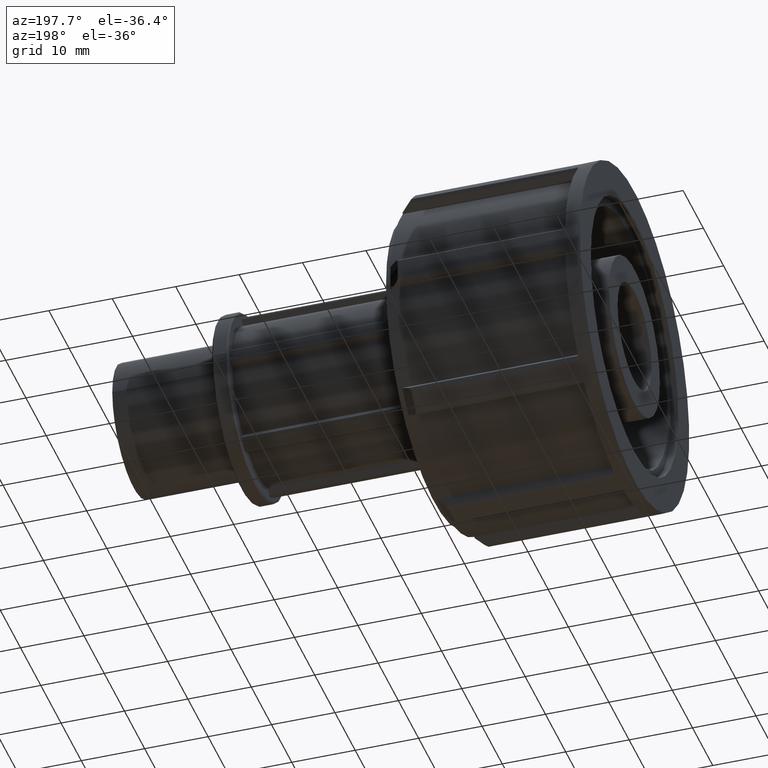
[diagram: clean part render]
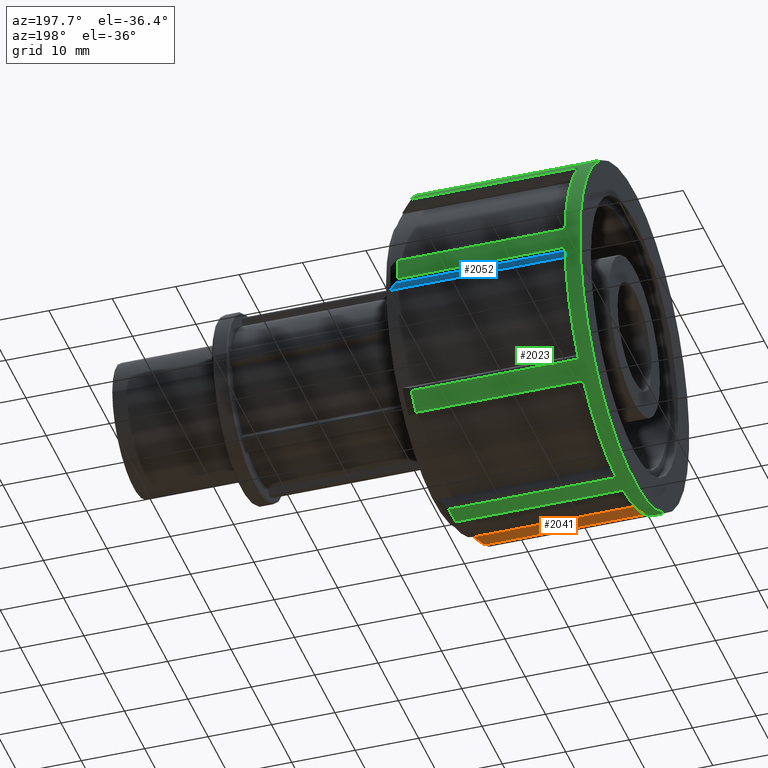
[diagram: same view with three faces highlighted in distinct colors, each labeled with its STEP entity id]
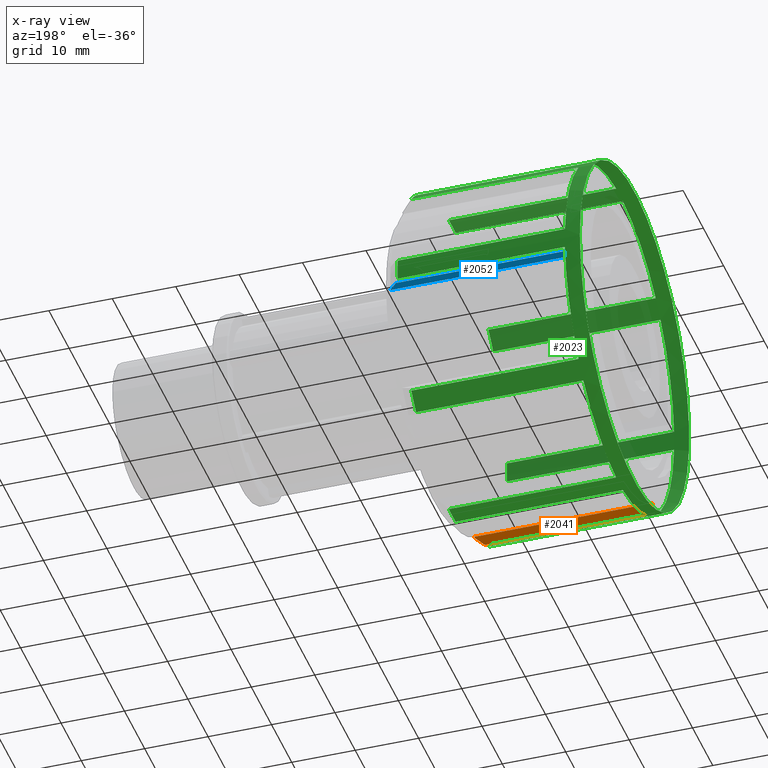
[diagram: x-ray of the same camera — body ghosted, the three highlighted faces saturated]
A machine part, auxiliary view with three faces highlighted in distinct colors.
The next image is the same camera in x-ray (body ghosted, the three faces saturated) — at least one of them is partly hidden behind the body in this view.
Their STEP definitions:

[orange] entity #2041 — the highlighted planar face has unit normal (0, 0.7071, -0.7071).
#33=(
BOUNDED_CURVE()
B_SPLINE_CURVE(2,(#3322,#3323,#3324),.UNSPECIFIED.,.F.,.F.)
B_SPLINE_CURVE_WITH_KNOTS((3,3),(3.71556836245612,3.9693944664499),
 .UNSPECIFIED.)
CURVE()
GEOMETRIC_REPRESENTATION_ITEM()
RATIONAL_B_SPLINE_CURVE((1.00844347344004,1.00451014131366,1.))
REPRESENTATION_ITEM('')
);
#258=FACE_OUTER_BOUND('',#380,.T.);
#380=EDGE_LOOP('',(#1660,#1661,#1662,#1663,#1664));
#580=LINE('',#3333,#760);
#581=LINE('',#3336,#761);
#582=LINE('',#3338,#762);
#583=LINE('',#3339,#763);
#760=VECTOR('',#2657,26.7864159718823);
#761=VECTOR('',#2660,1.47705058391555);
#762=VECTOR('',#2661,28.045);
#763=VECTOR('',#2662,0.214341363051373);
#954=VERTEX_POINT('',#3317);
#955=VERTEX_POINT('',#3321);
#957=VERTEX_POINT('',#3331);
#958=VERTEX_POINT('',#3335);
#959=VERTEX_POINT('',#3337);
#1213=EDGE_CURVE('',#954,#955,#33,.T.);
#1217=EDGE_CURVE('',#957,#954,#580,.T.);
#1218=EDGE_CURVE('',#958,#957,#581,.T.);
#1219=EDGE_CURVE('',#959,#958,#582,.T.);
#1220=EDGE_CURVE('',#955,#959,#583,.T.);
#1660=ORIENTED_EDGE('',*,*,#1217,.F.);
#1661=ORIENTED_EDGE('',*,*,#1218,.F.);
#1662=ORIENTED_EDGE('',*,*,#1219,.F.);
#1663=ORIENTED_EDGE('',*,*,#1220,.F.);
#1664=ORIENTED_EDGE('',*,*,#1213,.F.);
#1946=PLANE('',#2210);
#2041=ADVANCED_FACE('',(#258),#1946,.T.);
#2210=AXIS2_PLACEMENT_3D('',#3334,#2658,#2659);
#2657=DIRECTION('',(1.,0.,0.));
#2658=DIRECTION('center_axis',(0.,0.707106781186547,-0.707106781186548));
#2659=DIRECTION('ref_axis',(0.,-0.707106781186548,-0.707106781186547));
#2660=DIRECTION('',(0.,-0.707106781186548,-0.707106781186547));
#2661=DIRECTION('',(-1.,0.,0.));
#2662=DIRECTION('',(0.,0.707106781186548,0.707106781186547));
#3317=CARTESIAN_POINT('',(29.1564159718823,-17.2562056993749,-20.2196902193277));
#3321=CARTESIAN_POINT('',(30.415,-16.363335446635,-19.3268199665878));
#3322=CARTESIAN_POINT('Ctrl Pts',(29.1564159718823,-17.2562056993749,-20.2196902193277));
#3323=CARTESIAN_POINT('Ctrl Pts',(29.8010669156503,-16.7989456499202,-19.762430169873));
#3324=CARTESIAN_POINT('Ctrl Pts',(30.415,-16.363335446635,-19.3268199665878));
#3331=CARTESIAN_POINT('',(2.37,-17.2562056993749,-20.2196902193277));
#3333=CARTESIAN_POINT('',(1.185,-17.2562056993749,-20.2196902193277));
#3334=CARTESIAN_POINT('Origin',(30.415,-15.253646587463,-18.2171311074158));
#3335=CARTESIAN_POINT('',(2.37,-16.2117732153326,-19.1752577352854));
#3336=CARTESIAN_POINT('',(2.37,-0.6084521637433,-3.57193668369612));
#3337=CARTESIAN_POINT('',(30.415,-16.2117732153326,-19.1752577352854));
#3338=CARTESIAN_POINT('',(16.3925,-16.2117732153326,-19.1752577352854));
#3339=CARTESIAN_POINT('',(30.415,-17.5525541513701,-20.516038671323));

[blue] entity #2052 — the highlighted planar face has unit normal (0, -0, -1).
#22=(
BOUNDED_CURVE()
B_SPLINE_CURVE(2,(#3231,#3232,#3233),.UNSPECIFIED.,.F.,.F.)
B_SPLINE_CURVE_WITH_KNOTS((3,3),(0.,0.253826104014613),.UNSPECIFIED.)
CURVE()
GEOMETRIC_REPRESENTATION_ITEM()
RATIONAL_B_SPLINE_CURVE((1.,1.00451014132042,1.00844347345264))
REPRESENTATION_ITEM('')
);
#269=FACE_OUTER_BOUND('',#391,.T.);
#391=EDGE_LOOP('',(#1713,#1714,#1715,#1716,#1717));
#556=LINE('',#3218,#736);
#604=LINE('',#3418,#784);
#605=LINE('',#3420,#785);
#606=LINE('',#3421,#786);
#736=VECTOR('',#2597,26.7864159718823);
#784=VECTOR('',#2709,0.21434136305138);
#785=VECTOR('',#2710,28.045);
#786=VECTOR('',#2711,1.47705058391555);
#928=VERTEX_POINT('',#3213);
#929=VERTEX_POINT('',#3217);
#932=VERTEX_POINT('',#3229);
#980=VERTEX_POINT('',#3417);
#981=VERTEX_POINT('',#3419);
#1174=EDGE_CURVE('',#928,#929,#556,.T.);
#1179=EDGE_CURVE('',#932,#928,#22,.T.);
#1251=EDGE_CURVE('',#980,#932,#604,.T.);
#1252=EDGE_CURVE('',#981,#980,#605,.T.);
#1253=EDGE_CURVE('',#929,#981,#606,.T.);
#1713=ORIENTED_EDGE('',*,*,#1174,.F.);
#1714=ORIENTED_EDGE('',*,*,#1179,.F.);
#1715=ORIENTED_EDGE('',*,*,#1251,.F.);
#1716=ORIENTED_EDGE('',*,*,#1252,.F.);
#1717=ORIENTED_EDGE('',*,*,#1253,.F.);
#1955=PLANE('',#2223);
#2052=ADVANCED_FACE('',(#269),#1955,.T.);
#2223=AXIS2_PLACEMENT_3D('',#3416,#2707,#2708);
#2597=DIRECTION('',(-1.,0.,0.));
#2707=DIRECTION('center_axis',(0.,-2.22044604925031E-16,-1.));
#2708=DIRECTION('ref_axis',(0.,-1.,2.22044604925031E-16));
#2709=DIRECTION('',(0.,1.,-2.22044604925031E-16));
#2710=DIRECTION('',(1.,0.,0.));
#2711=DIRECTION('',(0.,-1.,2.22044604925031E-16));
#3213=CARTESIAN_POINT('',(29.1564159718823,26.4994601351558,-2.0955));
#3217=CARTESIAN_POINT('',(2.37,26.4994601351558,-2.0955));
#3218=CARTESIAN_POINT('',(1.185,26.4994601351558,-2.0955));
#3229=CARTESIAN_POINT('',(30.415,25.2367509142916,-2.0955));
#3231=CARTESIAN_POINT('Ctrl Pts',(30.415,25.2367509142916,-2.0955));
#3232=CARTESIAN_POINT('Ctrl Pts',(29.8010669156525,25.8527967716834,-2.0955));
#3233=CARTESIAN_POINT('Ctrl Pts',(29.1564159718823,26.4994601351558,-2.0955));
#3416=CARTESIAN_POINT('Origin',(30.415,26.9185601351558,-2.0955));
#3417=CARTESIAN_POINT('',(30.415,25.0224095512403,-2.0955));
#3418=CARTESIAN_POINT('',(30.415,23.6674138796363,-2.0955));
#3419=CARTESIAN_POINT('',(2.37,25.0224095512403,-2.0955));
#3420=CARTESIAN_POINT('',(16.3925,25.0224095512403,-2.0955));
#3421=CARTESIAN_POINT('',(2.37,26.0142800675779,-2.0955));

[green] entity #2023 — the highlighted cylindrical surface (bore or boss wall) has radius 27 mm, axis along (1, 0, 0).
#64=FACE_BOUND('',#362,.T.);
#111=CIRCLE('',#2170,27.);
#113=CIRCLE('',#2173,27.);
#114=CIRCLE('',#2174,27.);
#115=CIRCLE('',#2175,27.);
#116=CIRCLE('',#2176,27.);
#117=CIRCLE('',#2177,27.);
#118=CIRCLE('',#2178,27.);
#119=CIRCLE('',#2179,27.);
#120=CIRCLE('',#2180,27.);
#121=CIRCLE('',#2181,27.);
#122=CIRCLE('',#2182,27.);
#123=CIRCLE('',#2183,27.);
#124=CIRCLE('',#2184,27.);
#125=CIRCLE('',#2185,27.);
#126=CIRCLE('',#2186,27.);
#127=CIRCLE('',#2187,27.);
#128=CIRCLE('',#2188,27.);
#179=CYLINDRICAL_SURFACE('',#2172,27.);
#240=FACE_OUTER_BOUND('',#361,.T.);
#361=EDGE_LOOP('',(#1547));
#362=EDGE_LOOP('',(#1548,#1549,#1550,#1551,#1552,#1553,#1554,#1555,#1556,
#1557,#1558,#1559,#1560,#1561,#1562,#1563,#1564,#1565,#1566,#1567,#1568,
#1569,#1570,#1571,#1572,#1573,#1574,#1575,#1576,#1577,#1578,#1579));
#535=LINE('',#3123,#715);
#536=LINE('',#3146,#716);
#537=LINE('',#3150,#717);
#538=LINE('',#3154,#718);
#539=LINE('',#3158,#719);
#540=LINE('',#3162,#720);
#541=LINE('',#3166,#721);
#542=LINE('',#3170,#722);
#543=LINE('',#3174,#723);
#544=LINE('',#3178,#724);
#545=LINE('',#3182,#725);
#546=LINE('',#3186,#726);
#547=LINE('',#3190,#727);
#548=LINE('',#3194,#728);
#549=LINE('',#3198,#729);
#550=LINE('',#3201,#730);
#715=VECTOR('',#2530,26.3686);
#716=VECTOR('',#2543,26.3686);
#717=VECTOR('',#2546,26.3686);
#718=VECTOR('',#2549,26.3686);
#719=VECTOR('',#2552,26.3686);
#720=VECTOR('',#2555,26.3686);
#721=VECTOR('',#2558,26.3686);
#722=VECTOR('',#2561,26.3686);
#723=VECTOR('',#2564,26.3686);
#724=VECTOR('',#2567,26.3686);
#725=VECTOR('',#2570,26.3686);
#726=VECTOR('',#2573,26.3686);
#727=VECTOR('',#2576,26.3686);
#728=VECTOR('',#2579,26.3686);
#729=VECTOR('',#2582,26.3686);
#730=VECTOR('',#2585,26.3686);
#887=VERTEX_POINT('',#3114);
#890=VERTEX_POINT('',#3121);
#891=VERTEX_POINT('',#3125);
#895=VERTEX_POINT('',#3141);
#896=VERTEX_POINT('',#3143);
#897=VERTEX_POINT('',#3145);
#898=VERTEX_POINT('',#3147);
#899=VERTEX_POINT('',#3149);
#900=VERTEX_POINT('',#3151);
#901=VERTEX_POINT('',#3153);
#902=VERTEX_POINT('',#3155);
#903=VERTEX_POINT('',#3157);
#904=VERTEX_POINT('',#3159);
#905=VERTEX_POINT('',#3161);
#906=VERTEX_POINT('',#3163);
#907=VERTEX_POINT('',#3165);
#908=VERTEX_POINT('',#3167);
#909=VERTEX_POINT('',#3169);
#910=VERTEX_POINT('',#3171);
#911=VERTEX_POINT('',#3173);
#912=VERTEX_POINT('',#3175);
#913=VERTEX_POINT('',#3177);
#914=VERTEX_POINT('',#3179);
#915=VERTEX_POINT('',#3181);
#916=VERTEX_POINT('',#3183);
#917=VERTEX_POINT('',#3185);
#918=VERTEX_POINT('',#3187);
#919=VERTEX_POINT('',#3189);
#920=VERTEX_POINT('',#3191);
#921=VERTEX_POINT('',#3193);
#922=VERTEX_POINT('',#3195);
#923=VERTEX_POINT('',#3197);
#924=VERTEX_POINT('',#3199);
#1131=EDGE_CURVE('',#890,#887,#535,.T.);
#1132=EDGE_CURVE('',#887,#891,#111,.T.);
#1137=EDGE_CURVE('',#895,#895,#113,.T.);
#1138=EDGE_CURVE('',#896,#890,#114,.T.);
#1139=EDGE_CURVE('',#897,#896,#536,.T.);
#1140=EDGE_CURVE('',#898,#897,#115,.T.);
#1141=EDGE_CURVE('',#899,#898,#537,.T.);
#1142=EDGE_CURVE('',#900,#899,#116,.T.);
#1143=EDGE_CURVE('',#901,#900,#538,.T.);
#1144=EDGE_CURVE('',#902,#901,#117,.T.);
#1145=EDGE_CURVE('',#903,#902,#539,.T.);
#1146=EDGE_CURVE('',#904,#903,#118,.T.);
#1147=EDGE_CURVE('',#905,#904,#540,.T.);
#1148=EDGE_CURVE('',#906,#905,#119,.T.);
#1149=EDGE_CURVE('',#907,#906,#541,.T.);
#1150=EDGE_CURVE('',#908,#907,#120,.T.);
#1151=EDGE_CURVE('',#909,#908,#542,.T.);
#1152=EDGE_CURVE('',#910,#909,#121,.T.);
#1153=EDGE_CURVE('',#911,#910,#543,.T.);
#1154=EDGE_CURVE('',#912,#911,#122,.T.);
#1155=EDGE_CURVE('',#913,#912,#544,.T.);
#1156=EDGE_CURVE('',#914,#913,#123,.T.);
#1157=EDGE_CURVE('',#915,#914,#545,.T.);
#1158=EDGE_CURVE('',#916,#915,#124,.T.);
#1159=EDGE_CURVE('',#917,#916,#546,.T.);
#1160=EDGE_CURVE('',#918,#917,#125,.T.);
#1161=EDGE_CURVE('',#919,#918,#547,.T.);
#1162=EDGE_CURVE('',#920,#919,#126,.T.);
#1163=EDGE_CURVE('',#921,#920,#548,.T.);
#1164=EDGE_CURVE('',#922,#921,#127,.T.);
#1165=EDGE_CURVE('',#923,#922,#549,.T.);
#1166=EDGE_CURVE('',#924,#923,#128,.T.);
#1167=EDGE_CURVE('',#891,#924,#550,.T.);
#1547=ORIENTED_EDGE('',*,*,#1137,.T.);
#1548=ORIENTED_EDGE('',*,*,#1131,.F.);
#1549=ORIENTED_EDGE('',*,*,#1138,.F.);
#1550=ORIENTED_EDGE('',*,*,#1139,.F.);
#1551=ORIENTED_EDGE('',*,*,#1140,.F.);
#1552=ORIENTED_EDGE('',*,*,#1141,.F.);
#1553=ORIENTED_EDGE('',*,*,#1142,.F.);
#1554=ORIENTED_EDGE('',*,*,#1143,.F.);
#1555=ORIENTED_EDGE('',*,*,#1144,.F.);
#1556=ORIENTED_EDGE('',*,*,#1145,.F.);
#1557=ORIENTED_EDGE('',*,*,#1146,.F.);
#1558=ORIENTED_EDGE('',*,*,#1147,.F.);
#1559=ORIENTED_EDGE('',*,*,#1148,.F.);
#1560=ORIENTED_EDGE('',*,*,#1149,.F.);
#1561=ORIENTED_EDGE('',*,*,#1150,.F.);
#1562=ORIENTED_EDGE('',*,*,#1151,.F.);
#1563=ORIENTED_EDGE('',*,*,#1152,.F.);
#1564=ORIENTED_EDGE('',*,*,#1153,.F.);
#1565=ORIENTED_EDGE('',*,*,#1154,.F.);
#1566=ORIENTED_EDGE('',*,*,#1155,.F.);
#1567=ORIENTED_EDGE('',*,*,#1156,.F.);
#1568=ORIENTED_EDGE('',*,*,#1157,.F.);
#1569=ORIENTED_EDGE('',*,*,#1158,.F.);
#1570=ORIENTED_EDGE('',*,*,#1159,.F.);
#1571=ORIENTED_EDGE('',*,*,#1160,.F.);
#1572=ORIENTED_EDGE('',*,*,#1161,.F.);
#1573=ORIENTED_EDGE('',*,*,#1162,.F.);
#1574=ORIENTED_EDGE('',*,*,#1163,.F.);
#1575=ORIENTED_EDGE('',*,*,#1164,.F.);
#1576=ORIENTED_EDGE('',*,*,#1165,.F.);
#1577=ORIENTED_EDGE('',*,*,#1166,.F.);
#1578=ORIENTED_EDGE('',*,*,#1167,.F.);
#1579=ORIENTED_EDGE('',*,*,#1132,.F.);
#2023=ADVANCED_FACE('',(#240,#64),#179,.T.);
#2170=AXIS2_PLACEMENT_3D('',#3126,#2533,#2534);
#2172=AXIS2_PLACEMENT_3D('',#3140,#2537,#2538);
#2173=AXIS2_PLACEMENT_3D('',#3142,#2539,#2540);
#2174=AXIS2_PLACEMENT_3D('',#3144,#2541,#2542);
#2175=AXIS2_PLACEMENT_3D('',#3148,#2544,#2545);
#2176=AXIS2_PLACEMENT_3D('',#3152,#2547,#2548);
#2177=AXIS2_PLACEMENT_3D('',#3156,#2550,#2551);
#2178=AXIS2_PLACEMENT_3D('',#3160,#2553,#2554);
#2179=AXIS2_PLACEMENT_3D('',#3164,#2556,#2557);
#2180=AXIS2_PLACEMENT_3D('',#3168,#2559,#2560);
#2181=AXIS2_PLACEMENT_3D('',#3172,#2562,#2563);
#2182=AXIS2_PLACEMENT_3D('',#3176,#2565,#2566);
#2183=AXIS2_PLACEMENT_3D('',#3180,#2568,#2569);
#2184=AXIS2_PLACEMENT_3D('',#3184,#2571,#2572);
#2185=AXIS2_PLACEMENT_3D('',#3188,#2574,#2575);
#2186=AXIS2_PLACEMENT_3D('',#3192,#2577,#2578);
#2187=AXIS2_PLACEMENT_3D('',#3196,#2580,#2581);
#2188=AXIS2_PLACEMENT_3D('',#3200,#2583,#2584);
#2530=DIRECTION('',(1.,0.,0.));
#2533=DIRECTION('center_axis',(1.,0.,0.));
#2534=DIRECTION('ref_axis',(0.,1.,0.));
#2537=DIRECTION('center_axis',(1.,0.,0.));
#2538=DIRECTION('ref_axis',(0.,1.,0.));
#2539=DIRECTION('center_axis',(1.,0.,0.));
#2540=DIRECTION('ref_axis',(0.,0.,-1.));
#2541=DIRECTION('center_axis',(1.,0.,0.));
#2542=DIRECTION('ref_axis',(0.,0.,-1.));
#2543=DIRECTION('',(-1.,0.,0.));
#2544=DIRECTION('center_axis',(1.,0.,0.));
#2545=DIRECTION('ref_axis',(0.,1.,0.));
#2546=DIRECTION('',(1.,0.,0.));
#2547=DIRECTION('center_axis',(1.,0.,0.));
#2548=DIRECTION('ref_axis',(0.,0.,-1.));
#2549=DIRECTION('',(-1.,0.,0.));
#2550=DIRECTION('center_axis',(1.,0.,0.));
#2551=DIRECTION('ref_axis',(0.,1.,0.));
#2552=DIRECTION('',(1.,0.,0.));
#2553=DIRECTION('center_axis',(1.,0.,0.));
#2554=DIRECTION('ref_axis',(0.,0.,-1.));
#2555=DIRECTION('',(-1.,0.,0.));
#2556=DIRECTION('center_axis',(1.,0.,0.));
#2557=DIRECTION('ref_axis',(0.,1.,0.));
#2558=DIRECTION('',(1.,0.,0.));
#2559=DIRECTION('center_axis',(1.,0.,0.));
#2560=DIRECTION('ref_axis',(0.,0.,-1.));
#2561=DIRECTION('',(-1.,0.,0.));
#2562=DIRECTION('center_axis',(1.,0.,0.));
#2563=DIRECTION('ref_axis',(0.,-1.,0.));
#2564=DIRECTION('',(1.,0.,0.));
#2565=DIRECTION('center_axis',(1.,0.,0.));
#2566=DIRECTION('ref_axis',(0.,0.,-1.));
#2567=DIRECTION('',(-1.,0.,0.));
#2568=DIRECTION('center_axis',(1.,0.,0.));
#2569=DIRECTION('ref_axis',(0.,-1.,0.));
#2570=DIRECTION('',(1.,0.,0.));
#2571=DIRECTION('center_axis',(1.,0.,0.));
#2572=DIRECTION('ref_axis',(0.,0.,-1.));
#2573=DIRECTION('',(-1.,0.,0.));
#2574=DIRECTION('center_axis',(1.,0.,0.));
#2575=DIRECTION('ref_axis',(0.,-1.,0.));
#2576=DIRECTION('',(1.,0.,0.));
#2577=DIRECTION('center_axis',(1.,0.,0.));
#2578=DIRECTION('ref_axis',(0.,0.,-1.));
#2579=DIRECTION('',(-1.,0.,0.));
#2580=DIRECTION('center_axis',(1.,0.,0.));
#2581=DIRECTION('ref_axis',(0.,1.,0.));
#2582=DIRECTION('',(1.,0.,0.));
#2583=DIRECTION('center_axis',(1.,0.,0.));
#2584=DIRECTION('ref_axis',(0.,0.,-1.));
#2585=DIRECTION('',(-1.,0.,0.));
#3114=CARTESIAN_POINT('',(28.7386,20.2411206701267,17.8688845207912));
#3121=CARTESIAN_POINT('',(2.37,20.2411206701267,17.8688845207912));
#3123=CARTESIAN_POINT('',(1.185,20.2411206701267,17.8688845207912));
#3125=CARTESIAN_POINT('',(28.7386,17.8688845207912,20.2411206701267));
#3126=CARTESIAN_POINT('Origin',(28.7386,0.,0.));
#3140=CARTESIAN_POINT('Origin',(1.185,0.,0.));
#3141=CARTESIAN_POINT('',(0.,27.,0.));
#3142=CARTESIAN_POINT('Origin',(0.,0.,0.));
#3143=CARTESIAN_POINT('',(2.37,26.9478431015525,1.67742426777097));
#3144=CARTESIAN_POINT('Origin',(2.37,0.,0.));
#3145=CARTESIAN_POINT('',(28.7386,26.9478431015525,1.67742426777097));
#3146=CARTESIAN_POINT('',(1.185,26.9478431015525,1.67742426777097));
#3147=CARTESIAN_POINT('',(28.7386,26.9478431015525,-1.67742426777098));
#3148=CARTESIAN_POINT('Origin',(28.7386,0.,0.));
#3149=CARTESIAN_POINT('',(2.37,26.9478431015525,-1.67742426777098));
#3150=CARTESIAN_POINT('',(1.185,26.9478431015525,-1.67742426777098));
#3151=CARTESIAN_POINT('',(2.37,20.2411206701267,-17.8688845207912));
#3152=CARTESIAN_POINT('Origin',(2.37,0.,0.));
#3153=CARTESIAN_POINT('',(28.7386,20.2411206701267,-17.8688845207912));
#3154=CARTESIAN_POINT('',(1.185,20.2411206701267,-17.8688845207912));
#3155=CARTESIAN_POINT('',(28.7386,17.8688845207912,-20.2411206701267));
#3156=CARTESIAN_POINT('Origin',(28.7386,0.,0.));
#3157=CARTESIAN_POINT('',(2.37,17.8688845207912,-20.2411206701267));
#3158=CARTESIAN_POINT('',(1.185,17.8688845207912,-20.2411206701267));
#3159=CARTESIAN_POINT('',(2.37,1.67742426777097,-26.9478431015525));
#3160=CARTESIAN_POINT('Origin',(2.37,0.,0.));
#3161=CARTESIAN_POINT('',(28.7386,1.67742426777097,-26.9478431015525));
#3162=CARTESIAN_POINT('',(1.185,1.67742426777097,-26.9478431015525));
#3163=CARTESIAN_POINT('',(28.7386,-1.67742426777098,-26.9478431015525));
#3164=CARTESIAN_POINT('Origin',(28.7386,0.,0.));
#3165=CARTESIAN_POINT('',(2.37,-1.67742426777098,-26.9478431015525));
#3166=CARTESIAN_POINT('',(1.185,-1.67742426777098,-26.9478431015525));
#3167=CARTESIAN_POINT('',(2.37,-17.8688845207912,-20.2411206701267));
#3168=CARTESIAN_POINT('Origin',(2.37,0.,0.));
#3169=CARTESIAN_POINT('',(28.7386,-17.8688845207912,-20.2411206701267));
#3170=CARTESIAN_POINT('',(1.185,-17.8688845207912,-20.2411206701267));
#3171=CARTESIAN_POINT('',(28.7386,-20.2411206701267,-17.8688845207912));
#3172=CARTESIAN_POINT('Origin',(28.7386,0.,0.));
#3173=CARTESIAN_POINT('',(2.37,-20.2411206701267,-17.8688845207912));
#3174=CARTESIAN_POINT('',(1.185,-20.2411206701267,-17.8688845207912));
#3175=CARTESIAN_POINT('',(2.37,-26.9478431015525,-1.67742426777098));
#3176=CARTESIAN_POINT('Origin',(2.37,0.,0.));
#3177=CARTESIAN_POINT('',(28.7386,-26.9478431015525,-1.67742426777098));
#3178=CARTESIAN_POINT('',(1.185,-26.9478431015525,-1.67742426777098));
#3179=CARTESIAN_POINT('',(28.7386,-26.9478431015525,1.67742426777097));
#3180=CARTESIAN_POINT('Origin',(28.7386,0.,0.));
#3181=CARTESIAN_POINT('',(2.37,-26.9478431015525,1.67742426777097));
#3182=CARTESIAN_POINT('',(1.185,-26.9478431015525,1.67742426777097));
#3183=CARTESIAN_POINT('',(2.37,-20.2411206701267,17.8688845207912));
#3184=CARTESIAN_POINT('Origin',(2.37,0.,0.));
#3185=CARTESIAN_POINT('',(28.7386,-20.2411206701267,17.8688845207912));
#3186=CARTESIAN_POINT('',(1.185,-20.2411206701267,17.8688845207912));
#3187=CARTESIAN_POINT('',(28.7386,-17.8688845207912,20.2411206701267));
#3188=CARTESIAN_POINT('Origin',(28.7386,0.,0.));
#3189=CARTESIAN_POINT('',(2.37,-17.8688845207912,20.2411206701267));
#3190=CARTESIAN_POINT('',(1.185,-17.8688845207912,20.2411206701267));
#3191=CARTESIAN_POINT('',(2.37,-1.67742426777098,26.9478431015525));
#3192=CARTESIAN_POINT('Origin',(2.37,0.,0.));
#3193=CARTESIAN_POINT('',(28.7386,-1.67742426777098,26.9478431015525));
#3194=CARTESIAN_POINT('',(1.185,-1.67742426777098,26.9478431015525));
#3195=CARTESIAN_POINT('',(28.7386,1.67742426777097,26.9478431015525));
#3196=CARTESIAN_POINT('Origin',(28.7386,0.,0.));
#3197=CARTESIAN_POINT('',(2.37,1.67742426777097,26.9478431015525));
#3198=CARTESIAN_POINT('',(1.185,1.67742426777097,26.9478431015525));
#3199=CARTESIAN_POINT('',(2.37,17.8688845207912,20.2411206701267));
#3200=CARTESIAN_POINT('Origin',(2.37,0.,0.));
#3201=CARTESIAN_POINT('',(1.185,17.8688845207912,20.2411206701267));